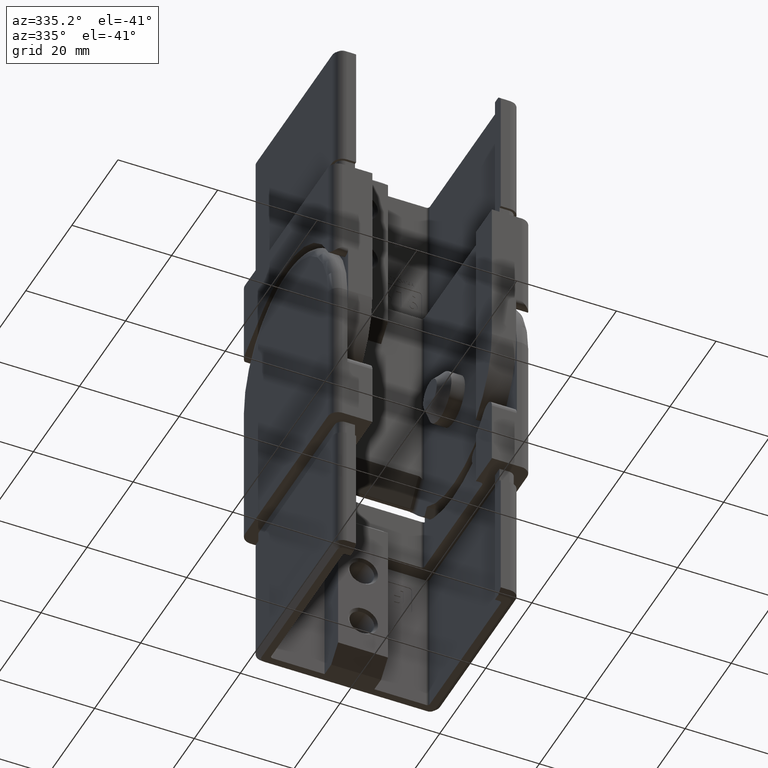
[diagram: clean part render]
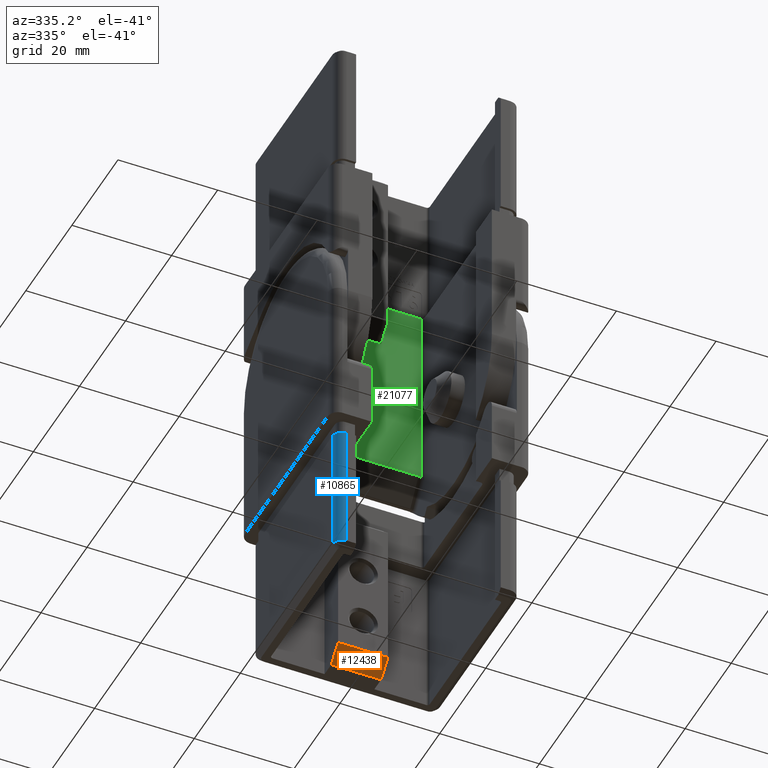
[diagram: same view with three faces highlighted in distinct colors, each labeled with its STEP entity id]
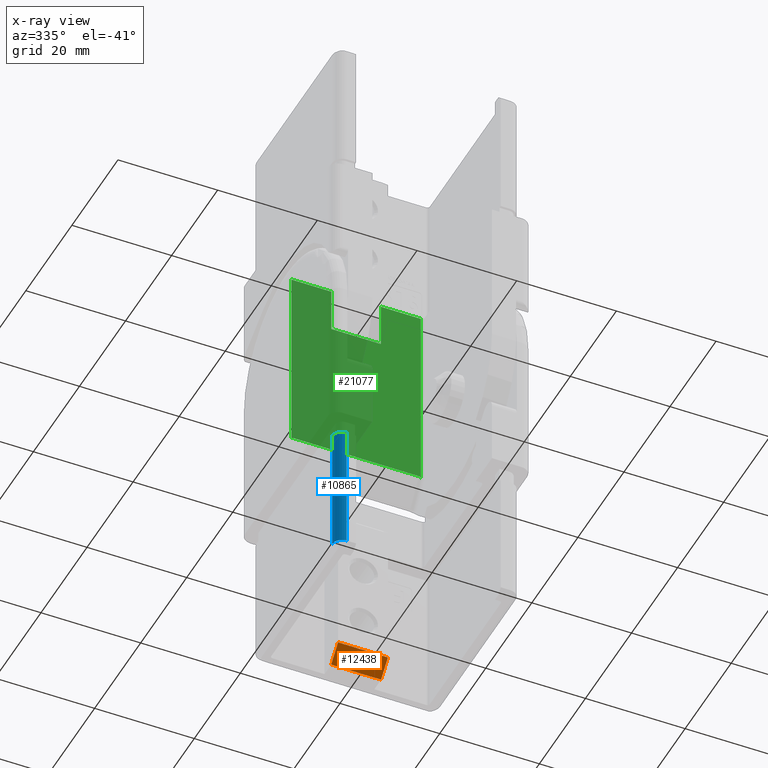
[diagram: x-ray of the same camera — body ghosted, the three highlighted faces saturated]
A machine part, auxiliary view with three faces highlighted in distinct colors.
The next image is the same camera in x-ray (body ghosted, the three faces saturated) — at least one of them is partly hidden behind the body in this view.
Their STEP definitions:

[orange] entity #12438 — the highlighted planar face has unit normal (0, 0.7071, 0.7071).
#428 = DIRECTION ( 'NONE',  ( 1.000000000000000000, 0.0000000000000000000, 0.0000000000000000000 ) ) ;
#1293 = ORIENTED_EDGE ( 'NONE', *, *, #6804, .F. ) ;
#1368 = VERTEX_POINT ( 'NONE', #10434 ) ;
#1672 = EDGE_CURVE ( 'NONE', #1368, #21771, #6445, .T. ) ;
#2218 = DIRECTION ( 'NONE',  ( 0.0000000000000000000, 0.7071067811865491300, -0.7071067811865459100 ) ) ;
#3434 = VECTOR ( 'NONE', #10927, 1000.000000000000000 ) ;
#3783 = EDGE_LOOP ( 'NONE', ( #4668, #24622, #10971, #1293 ) ) ;
#4366 = DIRECTION ( 'NONE',  ( -1.000000000000000000, 0.0000000000000000000, 0.0000000000000000000 ) ) ;
#4649 = CARTESIAN_POINT ( 'NONE',  ( 5.000000000000000000, 13.00000000000001100, 30.00000000000003900 ) ) ;
#4668 = ORIENTED_EDGE ( 'NONE', *, *, #14244, .F. ) ;
#6445 = LINE ( 'NONE', #20181, #21287 ) ;
#6502 = PLANE ( 'NONE',  #24657 ) ;
#6804 = EDGE_CURVE ( 'NONE', #17153, #15373, #23339, .T. ) ;
#6920 = DIRECTION ( 'NONE',  ( 1.000000000000000000, 0.0000000000000000000, 0.0000000000000000000 ) ) ;
#7287 = CARTESIAN_POINT ( 'NONE',  ( -5.000000000000000000, 10.00000000000003000, 27.00000000000006400 ) ) ;
#7599 = VECTOR ( 'NONE', #6920, 1000.000000000000000 ) ;
#8831 = CARTESIAN_POINT ( 'NONE',  ( 0.0000000000000000000, 13.00000000000001100, 30.00000000000003900 ) ) ;
#10434 = CARTESIAN_POINT ( 'NONE',  ( 5.000000000000000000, 10.00000000000003000, 27.00000000000006400 ) ) ;
#10927 = DIRECTION ( 'NONE',  ( -0.0000000000000000000, -0.7071067811865459100, -0.7071067811865490200 ) ) ;
#10971 = ORIENTED_EDGE ( 'NONE', *, *, #20174, .F. ) ;
#12118 = CARTESIAN_POINT ( 'NONE',  ( 0.0000000000000000000, 13.00000000000001100, 30.00000000000003900 ) ) ;
#12438 = ADVANCED_FACE ( 'NONE', ( #23765 ), #6502, .F. ) ;
#12674 = CARTESIAN_POINT ( 'NONE',  ( -5.000000000000000000, -6.500000000000008900, 10.49999999999994700 ) ) ;
#14244 = EDGE_CURVE ( 'NONE', #21771, #17153, #20323, .T. ) ;
#15373 = VERTEX_POINT ( 'NONE', #4649 ) ;
#17153 = VERTEX_POINT ( 'NONE', #23061 ) ;
#18760 = VECTOR ( 'NONE', #24338, 1000.000000000000000 ) ;
#20174 = EDGE_CURVE ( 'NONE', #15373, #1368, #21637, .T. ) ;
#20181 = CARTESIAN_POINT ( 'NONE',  ( -5.000000000000000000, 10.00000000000003000, 27.00000000000006400 ) ) ;
#20323 = LINE ( 'NONE', #12674, #18760 ) ;
#21287 = VECTOR ( 'NONE', #4366, 1000.000000000000000 ) ;
#21637 = LINE ( 'NONE', #22752, #3434 ) ;
#21771 = VERTEX_POINT ( 'NONE', #7287 ) ;
#22752 = CARTESIAN_POINT ( 'NONE',  ( 5.000000000000000000, -6.500000000000008900, 10.49999999999994700 ) ) ;
#23061 = CARTESIAN_POINT ( 'NONE',  ( -5.000000000000000000, 13.00000000000001100, 30.00000000000003900 ) ) ;
#23339 = LINE ( 'NONE', #8831, #7599 ) ;
#23765 = FACE_OUTER_BOUND ( 'NONE', #3783, .T. ) ;
#24338 = DIRECTION ( 'NONE',  ( -0.0000000000000000000, 0.7071067811865459100, 0.7071067811865490200 ) ) ;
#24622 = ORIENTED_EDGE ( 'NONE', *, *, #1672, .F. ) ;
#24657 = AXIS2_PLACEMENT_3D ( 'NONE', #12118, #2218, #428 ) ;

[blue] entity #10865 — the highlighted cylindrical surface (edge-blend (fillet) strip) has radius 2 mm, axis along (0, 0, 1).
#1541 = CARTESIAN_POINT ( 'NONE',  ( 16.39999999999997700, -18.40000000000002700, 3.000000000000023500 ) ) ;
#1795 = CIRCLE ( 'NONE', #8399, 2.000000000000001800 ) ;
#1877 = AXIS2_PLACEMENT_3D ( 'NONE', #16256, #6332, #22132 ) ;
#3249 = VECTOR ( 'NONE', #4791, 1000.000000000000000 ) ;
#3276 = ORIENTED_EDGE ( 'NONE', *, *, #22398, .T. ) ;
#3850 = CARTESIAN_POINT ( 'NONE',  ( 18.40000000000000600, -16.40000000000002300, 29.00000000000004600 ) ) ;
#4791 = DIRECTION ( 'NONE',  ( 0.0000000000000000000, 5.551115123125772800E-017, -1.000000000000000000 ) ) ;
#4800 = CIRCLE ( 'NONE', #23259, 1.999999999999984500 ) ;
#5461 = VERTEX_POINT ( 'NONE', #21708 ) ;
#6022 = EDGE_CURVE ( 'NONE', #11528, #20734, #4800, .T. ) ;
#6332 = DIRECTION ( 'NONE',  ( 0.0000000000000000000, 5.551115123125772800E-017, -1.000000000000000000 ) ) ;
#6911 = LINE ( 'NONE', #11492, #15874 ) ;
#7473 = ORIENTED_EDGE ( 'NONE', *, *, #6022, .F. ) ;
#7767 = DIRECTION ( 'NONE',  ( 0.0000000000000000000, 5.551115123125772800E-017, -1.000000000000000000 ) ) ;
#8399 = AXIS2_PLACEMENT_3D ( 'NONE', #16027, #10086, #23900 ) ;
#8414 = CYLINDRICAL_SURFACE ( 'NONE', #1877, 2.000000000000003600 ) ;
#10086 = DIRECTION ( 'NONE',  ( -0.0000000000000000000, 5.551115123125772800E-017, -1.000000000000000000 ) ) ;
#10242 = CARTESIAN_POINT ( 'NONE',  ( 16.40000000000000600, -16.40000000000002700, 2.999999999999995600 ) ) ;
#10409 = DIRECTION ( 'NONE',  ( -1.000000000000000000, 0.0000000000000000000, 0.0000000000000000000 ) ) ;
#10588 = EDGE_LOOP ( 'NONE', ( #14353, #7473, #24516, #3276 ) ) ;
#10865 = ADVANCED_FACE ( 'NONE', ( #10931 ), #8414, .T. ) ;
#10931 = FACE_OUTER_BOUND ( 'NONE', #10588, .T. ) ;
#11492 = CARTESIAN_POINT ( 'NONE',  ( 18.40000000000000600, -16.40000000000002700, 30.00000000000005300 ) ) ;
#11528 = VERTEX_POINT ( 'NONE', #13362 ) ;
#12300 = VERTEX_POINT ( 'NONE', #3850 ) ;
#13362 = CARTESIAN_POINT ( 'NONE',  ( 18.39999999999998800, -16.40000000000004800, 2.999999999999995600 ) ) ;
#14353 = ORIENTED_EDGE ( 'NONE', *, *, #23749, .T. ) ;
#15874 = VECTOR ( 'NONE', #7767, 1000.000000000000000 ) ;
#16027 = CARTESIAN_POINT ( 'NONE',  ( 16.40000000000000600, -16.40000000000002300, 29.00000000000004600 ) ) ;
#16256 = CARTESIAN_POINT ( 'NONE',  ( 16.40000000000000600, -16.40000000000002700, 30.00000000000005300 ) ) ;
#16446 = DIRECTION ( 'NONE',  ( 0.0000000000000000000, 5.551115123125772800E-017, -1.000000000000000000 ) ) ;
#16890 = CARTESIAN_POINT ( 'NONE',  ( 16.40000000000000600, -18.40000000000003800, 30.00000000000004600 ) ) ;
#17220 = EDGE_CURVE ( 'NONE', #12300, #11528, #6911, .T. ) ;
#18077 = LINE ( 'NONE', #16890, #3249 ) ;
#20734 = VERTEX_POINT ( 'NONE', #1541 ) ;
#21708 = CARTESIAN_POINT ( 'NONE',  ( 16.40000000000000600, -18.40000000000003400, 29.00000000000004600 ) ) ;
#22132 = DIRECTION ( 'NONE',  ( -1.000000000000000000, 0.0000000000000000000, 0.0000000000000000000 ) ) ;
#22398 = EDGE_CURVE ( 'NONE', #12300, #5461, #1795, .T. ) ;
#23259 = AXIS2_PLACEMENT_3D ( 'NONE', #10242, #16446, #10409 ) ;
#23749 = EDGE_CURVE ( 'NONE', #5461, #20734, #18077, .T. ) ;
#23900 = DIRECTION ( 'NONE',  ( 1.000000000000000000, 0.0000000000000000000, 0.0000000000000000000 ) ) ;
#24516 = ORIENTED_EDGE ( 'NONE', *, *, #17220, .F. ) ;

[green] entity #21077 — the highlighted planar face has unit normal (0, -1, 0).
#743 = CARTESIAN_POINT ( 'NONE',  ( 13.00000000000000000, 13.00000000000001400, -38.33882089438778700 ) ) ;
#828 = CARTESIAN_POINT ( 'NONE',  ( -7.000000000000000000, 13.00000000000000200, -8.999999999999984000 ) ) ;
#1614 = DIRECTION ( 'NONE',  ( 1.000000000000000000, -6.938893903907244200E-016, 0.0000000000000000000 ) ) ;
#2477 = ORIENTED_EDGE ( 'NONE', *, *, #5239, .F. ) ;
#2499 = PLANE ( 'NONE',  #2938 ) ;
#2596 = EDGE_CURVE ( 'NONE', #6812, #7624, #17271, .T. ) ;
#2742 = CARTESIAN_POINT ( 'NONE',  ( 5.000000000000000000, 13.00000000000000200, 0.0000000000000000000 ) ) ;
#2825 = ORIENTED_EDGE ( 'NONE', *, *, #7390, .T. ) ;
#2938 = AXIS2_PLACEMENT_3D ( 'NONE', #18028, #18201, #4304 ) ;
#2995 = CARTESIAN_POINT ( 'NONE',  ( 5.000000000000000000, 13.00000000000000200, -5.999999999999998200 ) ) ;
#3858 = VERTEX_POINT ( 'NONE', #25244 ) ;
#3976 = VECTOR ( 'NONE', #13964, 1000.000000000000000 ) ;
#4240 = LINE ( 'NONE', #2995, #21836 ) ;
#4304 = DIRECTION ( 'NONE',  ( 1.000000000000000000, 6.938893903907244200E-016, 0.0000000000000000000 ) ) ;
#4371 = CARTESIAN_POINT ( 'NONE',  ( 5.000000000000032000, 13.00000000000000200, -38.10524331392112900 ) ) ;
#4759 = EDGE_CURVE ( 'NONE', #3858, #12546, #11326, .T. ) ;
#5239 = EDGE_CURVE ( 'NONE', #17422, #3858, #4240, .T. ) ;
#5433 = VECTOR ( 'NONE', #1614, 1000.000000000000000 ) ;
#5442 = VERTEX_POINT ( 'NONE', #13762 ) ;
#5550 = CARTESIAN_POINT ( 'NONE',  ( 12.99999999999999800, 13.00000000000001200, -5.999999999999998200 ) ) ;
#6177 = VECTOR ( 'NONE', #14289, 1000.000000000000000 ) ;
#6254 = DIRECTION ( 'NONE',  ( 1.000000000000000000, -6.938893903907244200E-016, 9.909767497860259900E-016 ) ) ;
#6533 = CARTESIAN_POINT ( 'NONE',  ( -12.84709740150398700, 12.99999999999999500, -38.18491227679692900 ) ) ;
#6586 = VECTOR ( 'NONE', #21341, 1000.000000000000000 ) ;
#6610 = LINE ( 'NONE', #22366, #12810 ) ;
#6617 = CARTESIAN_POINT ( 'NONE',  ( -12.50000000000000000, 13.00000000000001200, -38.10524331392114300 ) ) ;
#6812 = VERTEX_POINT ( 'NONE', #14750 ) ;
#6817 = ORIENTED_EDGE ( 'NONE', *, *, #4759, .F. ) ;
#7390 = EDGE_CURVE ( 'NONE', #22700, #16467, #13392, .T. ) ;
#7624 = VERTEX_POINT ( 'NONE', #23781 ) ;
#8433 = CARTESIAN_POINT ( 'NONE',  ( -12.67655671280293300, 12.99999999999999500, -38.10524331392110800 ) ) ;
#9571 = ORIENTED_EDGE ( 'NONE', *, *, #23245, .F. ) ;
#10561 = CARTESIAN_POINT ( 'NONE',  ( 13.00000000000000200, 12.99999999999999600, 0.0000000000000000000 ) ) ;
#10768 = CARTESIAN_POINT ( 'NONE',  ( -13.00000000000000000, 12.99999999999999500, -38.33882089438775900 ) ) ;
#10824 = LINE ( 'NONE', #24404, #6177 ) ;
#11326 = LINE ( 'NONE', #2742, #5433 ) ;
#12002 = CARTESIAN_POINT ( 'NONE',  ( -13.00000000000000000, 12.99999999999999600, -39.84869010954222500 ) ) ;
#12528 = DIRECTION ( 'NONE',  ( 1.000000000000000000, 6.938893903907244200E-016, 0.0000000000000000000 ) ) ;
#12534 = VERTEX_POINT ( 'NONE', #22378 ) ;
#12546 = VERTEX_POINT ( 'NONE', #10561 ) ;
#12671 = FACE_OUTER_BOUND ( 'NONE', #15617, .T. ) ;
#12675 = CARTESIAN_POINT ( 'NONE',  ( 12.50000000000000000, 12.99999999999999600, -38.10524331392112200 ) ) ;
#12810 = VECTOR ( 'NONE', #12528, 1000.000000000000000 ) ;
#13392 = LINE ( 'NONE', #4371, #17143 ) ;
#13762 = CARTESIAN_POINT ( 'NONE',  ( -5.000000000000000000, 13.00000000000000200, -8.999999999999984000 ) ) ;
#13964 = DIRECTION ( 'NONE',  ( 0.0000000000000000000, 0.0000000000000000000, -1.000000000000000000 ) ) ;
#14289 = DIRECTION ( 'NONE',  ( 0.0000000000000000000, 0.0000000000000000000, 1.000000000000000000 ) ) ;
#14488 = EDGE_CURVE ( 'NONE', #7624, #22700, #15265, .T. ) ;
#14750 = CARTESIAN_POINT ( 'NONE',  ( -13.00000000000000000, 12.99999999999999600, 0.0000000000000000000 ) ) ;
#15265 =( BOUNDED_CURVE ( )  B_SPLINE_CURVE ( 3, ( #10768, #6533, #8433, #6617 ),
 .UNSPECIFIED., .F., .T. ) 
 B_SPLINE_CURVE_WITH_KNOTS ( ( 4, 4 ),
 ( 5.759586531581289700, 6.283185307179587100 ),
 .UNSPECIFIED. ) 
 CURVE ( )  GEOMETRIC_REPRESENTATION_ITEM ( )  RATIONAL_B_SPLINE_CURVE ( ( 1.000000000000000000, 0.9772838841927123900, 0.9772838841927123900, 1.000000000000000000 ) ) 
 REPRESENTATION_ITEM ( '' )  );
#15617 = EDGE_LOOP ( 'NONE', ( #24610, #22219, #6817, #2477, #9571, #25493, #22269, #21063, #21543, #2825 ) ) ;
#16178 = CARTESIAN_POINT ( 'NONE',  ( 12.50000000000000000, 12.99999999999999600, -38.10524331392112200 ) ) ;
#16273 = EDGE_CURVE ( 'NONE', #24644, #12546, #17444, .T. ) ;
#16467 = VERTEX_POINT ( 'NONE', #16178 ) ;
#16588 = CARTESIAN_POINT ( 'NONE',  ( -12.50000000000000000, 13.00000000000001200, -38.10524331392114300 ) ) ;
#16984 = EDGE_CURVE ( 'NONE', #6812, #12534, #6610, .T. ) ;
#17143 = VECTOR ( 'NONE', #6254, 1000.000000000000000 ) ;
#17271 = LINE ( 'NONE', #12002, #3976 ) ;
#17422 = VERTEX_POINT ( 'NONE', #21908 ) ;
#17444 = LINE ( 'NONE', #5550, #6586 ) ;
#17816 = LINE ( 'NONE', #828, #19381 ) ;
#18028 = CARTESIAN_POINT ( 'NONE',  ( -12.49999999999998400, 12.99999999999999600, -5.999999999999998200 ) ) ;
#18201 = DIRECTION ( 'NONE',  ( 6.938893903907244200E-016, -1.000000000000000000, 0.0000000000000000000 ) ) ;
#18448 = DIRECTION ( 'NONE',  ( 0.0000000000000000000, 0.0000000000000000000, 1.000000000000000000 ) ) ;
#19381 = VECTOR ( 'NONE', #24928, 1000.000000000000000 ) ;
#19615 = EDGE_CURVE ( 'NONE', #16467, #24644, #22685, .T. ) ;
#20389 = CARTESIAN_POINT ( 'NONE',  ( 12.67655671280293300, 13.00000000000001400, -38.10524331392113600 ) ) ;
#20912 = EDGE_CURVE ( 'NONE', #5442, #12534, #10824, .T. ) ;
#21063 = ORIENTED_EDGE ( 'NONE', *, *, #2596, .T. ) ;
#21077 = ADVANCED_FACE ( 'NONE', ( #12671 ), #2499, .T. ) ;
#21341 = DIRECTION ( 'NONE',  ( -0.0000000000000000000, -0.0000000000000000000, 1.000000000000000000 ) ) ;
#21543 = ORIENTED_EDGE ( 'NONE', *, *, #14488, .T. ) ;
#21836 = VECTOR ( 'NONE', #18448, 1000.000000000000000 ) ;
#21908 = CARTESIAN_POINT ( 'NONE',  ( 5.000000000000000000, 13.00000000000000200, -8.999999999999984000 ) ) ;
#22102 = CARTESIAN_POINT ( 'NONE',  ( 13.00000000000000000, 13.00000000000001400, -38.33882089438778700 ) ) ;
#22219 = ORIENTED_EDGE ( 'NONE', *, *, #16273, .T. ) ;
#22269 = ORIENTED_EDGE ( 'NONE', *, *, #16984, .F. ) ;
#22366 = CARTESIAN_POINT ( 'NONE',  ( -12.49999999999998400, 12.99999999999999600, 0.0000000000000000000 ) ) ;
#22378 = CARTESIAN_POINT ( 'NONE',  ( -5.000000000000000000, 13.00000000000000200, 0.0000000000000000000 ) ) ;
#22685 =( BOUNDED_CURVE ( )  B_SPLINE_CURVE ( 3, ( #12675, #20389, #24339, #743 ),
 .UNSPECIFIED., .F., .F. ) 
 B_SPLINE_CURVE_WITH_KNOTS ( ( 4, 4 ),
 ( 3.141592653589794000, 3.665191429188090500 ),
 .UNSPECIFIED. ) 
 CURVE ( )  GEOMETRIC_REPRESENTATION_ITEM ( )  RATIONAL_B_SPLINE_CURVE ( ( 1.000000000000000000, 0.9772838841927123900, 0.9772838841927123900, 1.000000000000000000 ) ) 
 REPRESENTATION_ITEM ( '' )  );
#22700 = VERTEX_POINT ( 'NONE', #16588 ) ;
#23245 = EDGE_CURVE ( 'NONE', #5442, #17422, #17816, .T. ) ;
#23781 = CARTESIAN_POINT ( 'NONE',  ( -13.00000000000000000, 12.99999999999999500, -38.33882089438775900 ) ) ;
#24339 = CARTESIAN_POINT ( 'NONE',  ( 12.84709740150398500, 13.00000000000001400, -38.18491227679695800 ) ) ;
#24404 = CARTESIAN_POINT ( 'NONE',  ( -5.000000000000000000, 13.00000000000000200, -5.999999999999998200 ) ) ;
#24610 = ORIENTED_EDGE ( 'NONE', *, *, #19615, .T. ) ;
#24644 = VERTEX_POINT ( 'NONE', #22102 ) ;
#24928 = DIRECTION ( 'NONE',  ( 1.000000000000000000, -0.0000000000000000000, -0.0000000000000000000 ) ) ;
#25244 = CARTESIAN_POINT ( 'NONE',  ( 5.000000000000000000, 13.00000000000000200, 0.0000000000000000000 ) ) ;
#25493 = ORIENTED_EDGE ( 'NONE', *, *, #20912, .T. ) ;